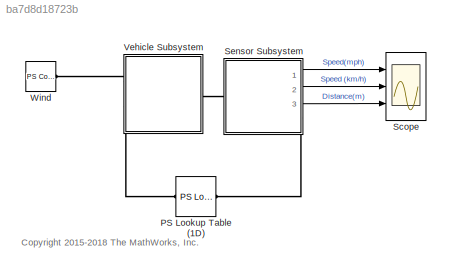
MODEL slx_ba7d8d18723b
KIND model
CONFIG AbsTol = 1e-3
CONFIG EnableMultiTasking = on
CONFIG FixedStep = auto
CONFIG InitFcn = load('terrain_data.mat');\ncar_tire_data;
CONFIG MaxStep = auto
CONFIG MinStep = auto
CONFIG RelTol = 1e-3
CONFIG SampleTimeConstraint = Unconstrained
CONFIG Solver = ode23t
CONFIG SolverName = ode23t
CONFIG StartTime = 0.0
CONFIG StopTime = 75
BLOCK [Reference] PS Lookup Table (1D)  REF=fl_lib/Physical Signals/Lookup Tables/PS Lookup Table (1D)
  Ports = [0, 0, 0, 0, 0, 1, 1]
  SourceBlock = fl_lib/Physical Signals/Lookup Tables/PS Lookup Table (1D)
  SourceProductBaseCode = SS
  SourceProductName = Simscape
  SourceType = PS Lookup Table (1D)
BLOCK [Scope] Scope
  NumInputPorts = 3
  Ports = [3]
  ScopeSpecificationString = Simulink.scopes.TimeScopeBlockCfg('CurrentConfiguration', extmgr.ConfigurationSet(extmgr.Configuration('Core','General UI',true),extmgr.Configuration('Core','Source UI',true),extmgr.Configuration('Sources','WiredSimulink',true,'DataLoggingVariableName','ScopeData1','DataLoggingSaveFormat','Array','DataLoggingDecimation','1','DataLoggingDecimateData',true),extmgr.Configuration('Visuals','Time Domai...<+3020ch>
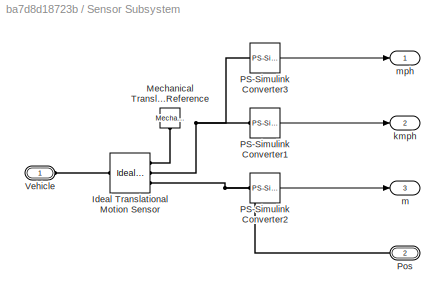
BLOCK [SubSystem] Sensor Subsystem
  Ports = [0, 3, 0, 0, 0, 1, 1]
  RequestExecContextInheritance = off
  Variant = off
BLOCK [Reference] Sensor Subsystem/Ideal Translational Motion Sensor  REF=fl_lib/Mechanical/Mechanical Sensors/Ideal Translational
Motion Sensor
  Ports = [0, 0, 0, 0, 0, 1, 3]
  SourceBlock = fl_lib/Mechanical/Mechanical Sensors/Ideal Translational\nMotion Sensor
  SourceProductBaseCode = SS
  SourceProductName = Simscape
  SourceType = Ideal Translational\nMotion Sensor
BLOCK [Reference] Sensor Subsystem/Mechanical Translational Reference  REF=fl_lib/Mechanical/Translational
Elements/Mechanical
Translational
Reference
  Ports = [0, 0, 0, 0, 0, 1]
  SourceBlock = fl_lib/Mechanical/Translational\nElements/Mechanical\nTranslational\nReference
  SourceProductBaseCode = SS
  SourceProductName = Simscape
  SourceType = Mechanical\nTranslational\nReference
BLOCK [Reference] Sensor Subsystem/PS-Simulink Converter1  REF=nesl_utility/PS-Simulink
Converter
  Ports = [0, 1, 0, 0, 0, 1]
  SourceBlock = nesl_utility/PS-Simulink\nConverter
  SourceProductBaseCode = SS
  SourceProductName = Simscape
  SourceType = PS-Simulink\nConverter
BLOCK [Reference] Sensor Subsystem/PS-Simulink Converter2  REF=nesl_utility/PS-Simulink
Converter
  Ports = [0, 1, 0, 0, 0, 1]
  SourceBlock = nesl_utility/PS-Simulink\nConverter
  SourceProductBaseCode = SS
  SourceProductName = Simscape
  SourceType = PS-Simulink\nConverter
BLOCK [Reference] Sensor Subsystem/PS-Simulink Converter3  REF=nesl_utility/PS-Simulink
Converter
  Ports = [0, 1, 0, 0, 0, 1]
  SourceBlock = nesl_utility/PS-Simulink\nConverter
  SourceProductBaseCode = SS
  SourceProductName = Simscape
  SourceType = PS-Simulink\nConverter
BLOCK [PMIOPort] Sensor Subsystem/Pos
  Port = 2
  Side = Right
BLOCK [PMIOPort] Sensor Subsystem/Vehicle
  Port = 1
  Side = Left
BLOCK [Outport] Sensor Subsystem/kmph
  IconDisplay = Port number
  Port = 2
BLOCK [Outport] Sensor Subsystem/m
  IconDisplay = Port number
  Port = 3
BLOCK [Outport] Sensor Subsystem/mph
  IconDisplay = Port number
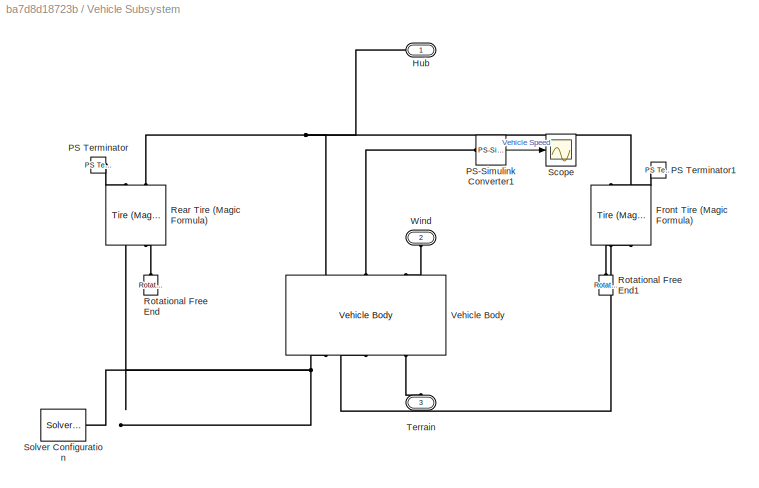
BLOCK [SubSystem] Vehicle Subsystem
  Ports = [0, 0, 0, 0, 0, 2, 1]
  RequestExecContextInheritance = off
  Variant = off
BLOCK [Reference] Vehicle Subsystem/Front Tire (Magic Formula)  REF=sdl_lib/Tires & Vehicles/Tire (Magic Formula)
  Ports = [0, 0, 0, 0, 0, 2, 2]
  SourceBlock = sdl_lib/Tires & Vehicles/Tire (Magic Formula)
  SourceProductBaseCode = LD
  SourceProductName = Simscape Driveline
  SourceType = Tire (Magic Formula)
BLOCK [PMIOPort] Vehicle Subsystem/Hub
  Port = 1
  Side = Right
BLOCK [Reference] Vehicle Subsystem/PS Terminator  REF=fl_lib/Physical Signals/Sinks/PS Terminator
  Ports = [0, 0, 0, 0, 0, 1]
  SourceBlock = fl_lib/Physical Signals/Sinks/PS Terminator
  SourceProductBaseCode = SS
  SourceProductName = Simscape
  SourceType = PS Terminator
BLOCK [Reference] Vehicle Subsystem/PS Terminator1  REF=fl_lib/Physical Signals/Sinks/PS Terminator
  Ports = [0, 0, 0, 0, 0, 1]
  SourceBlock = fl_lib/Physical Signals/Sinks/PS Terminator
  SourceProductBaseCode = SS
  SourceProductName = Simscape
  SourceType = PS Terminator
BLOCK [Reference] Vehicle Subsystem/PS-Simulink Converter1  REF=nesl_utility/PS-Simulink
Converter
  Ports = [0, 1, 0, 0, 0, 1]
  SourceBlock = nesl_utility/PS-Simulink\nConverter
  SourceProductBaseCode = SS
  SourceProductName = Simscape
  SourceType = PS-Simulink\nConverter
BLOCK [Reference] Vehicle Subsystem/Rear Tire (Magic Formula)  REF=sdl_lib/Tires & Vehicles/Tire (Magic Formula)
  Ports = [0, 0, 0, 0, 0, 2, 2]
  SourceBlock = sdl_lib/Tires & Vehicles/Tire (Magic Formula)
  SourceProductBaseCode = LD
  SourceProductName = Simscape Driveline
  SourceType = Tire (Magic Formula)
BLOCK [Reference] Vehicle Subsystem/Rotational Free End  REF=fl_lib/Mechanical/Rotational Elements/Rotational Free End
  Ports = [0, 0, 0, 0, 0, 1]
  SourceBlock = fl_lib/Mechanical/Rotational Elements/Rotational Free End
  SourceProductBaseCode = SS
  SourceProductName = Simscape
  SourceType = Rotational Free End
BLOCK [Reference] Vehicle Subsystem/Rotational Free End1  REF=fl_lib/Mechanical/Rotational Elements/Rotational Free End
  Ports = [0, 0, 0, 0, 0, 1]
  SourceBlock = fl_lib/Mechanical/Rotational Elements/Rotational Free End
  SourceProductBaseCode = SS
  SourceProductName = Simscape
  SourceType = Rotational Free End
BLOCK [Scope] Vehicle Subsystem/Scope
  NumInputPorts = 1
  Ports = [1]
  ScopeSpecificationString = C++SS(StrPVP('Location','[812, 325, 1206, 663]'),StrPVP('Open','off'),MxPVP('AxesTitles',53,'struct(''axes1'',''%<SignalLabel>'')'),MxPVP('ScopeGraphics',56,'struct(''FigureColor'',''[0.5 0.5 0.5]'',''AxesColor'',''[0 0 0]'',''AxesTickColor'',''[1 1 1]'',''LineColors'',''[1 1 0;1 0 1;0 1 1;1 0 0;0 1 0;0 0 1]'',''LineStyles'',''-|-|-|-|-|-'',''LineWidths'',''[0.5 0.5 0.5 0.5 0.5 0.5]'',''MarkerStyl...<+165ch>
BLOCK [Reference] Vehicle Subsystem/Solver Configuration  REF=nesl_utility/Solver
Configuration
  Ports = [0, 0, 0, 0, 0, 0, 1]
  SourceBlock = nesl_utility/Solver\nConfiguration
  SourceProductBaseCode = SS
  SourceProductName = Simscape
  SourceType = Solver\nConfiguration
BLOCK [PMIOPort] Vehicle Subsystem/Terrain
  Port = 3
  Side = Left
BLOCK [Reference] Vehicle Subsystem/Vehicle Body  REF=sdl_lib/Tires & Vehicles/Vehicle Body
  Ports = [0, 0, 0, 0, 0, 3, 3]
  SourceBlock = sdl_lib/Tires & Vehicles/Vehicle Body
  SourceProductBaseCode = LD
  SourceProductName = Simscape Driveline
  SourceType = Vehicle Body
BLOCK [PMIOPort] Vehicle Subsystem/Wind
  Port = 2
  Side = Left
BLOCK [Reference] Wind  REF=fl_lib/Physical Signals/Sources/PS Constant
  Ports = [0, 0, 0, 0, 0, 0, 1]
  SourceBlock = fl_lib/Physical Signals/Sources/PS Constant
  SourceProductBaseCode = SS
  SourceProductName = Simscape
  SourceType = PS Constant
ANNOTATION (root): <copyright redacted>
LINE Sensor Subsystem/PS-Simulink Converter1:1 -> Sensor Subsystem/kmph:1
LINE Sensor Subsystem/PS-Simulink Converter2:1 -> Sensor Subsystem/m:1
LINE Sensor Subsystem/PS-Simulink Converter3:1 -> Sensor Subsystem/mph:1
LINE Sensor Subsystem:1 -> Scope:1
LINE Sensor Subsystem:2 -> Scope:2
LINE Sensor Subsystem:3 -> Scope:3
LINE Vehicle Subsystem/PS-Simulink Converter1:1 -> Vehicle Subsystem/Scope:1
PLINE PS Lookup Table (1D):LConn1 -- Sensor Subsystem:RConn1
PLINE PS Lookup Table (1D):RConn1 -- Vehicle Subsystem:LConn2
PLINE Sensor Subsystem/Ideal Translational Motion Sensor:LConn1 -- Sensor Subsystem/Vehicle:RConn1
PLINE Sensor Subsystem/Ideal Translational Motion Sensor:RConn1 -- Sensor Subsystem/Mechanical Translational Reference:LConn1
PNET net1: Sensor Subsystem/Ideal Translational Motion Sensor:RConn2 -- Sensor Subsystem/PS-Simulink Converter1:LConn1 -- Sensor Subsystem/PS-Simulink Converter3:LConn1
PNET net2: Sensor Subsystem/Ideal Translational Motion Sensor:RConn3 -- Sensor Subsystem/PS-Simulink Converter2:LConn1 -- Sensor Subsystem/Pos:RConn1
PLINE Sensor Subsystem:LConn1 -- Vehicle Subsystem:RConn1
PLINE Vehicle Subsystem/Front Tire (Magic Formula):LConn1 -- Vehicle Subsystem/Vehicle Body:RConn2
PLINE Vehicle Subsystem/Front Tire (Magic Formula):LConn2 -- Vehicle Subsystem/Rotational Free End1:LConn1
PLINE Vehicle Subsystem/Front Tire (Magic Formula):RConn1 -- Vehicle Subsystem/PS Terminator1:LConn1
PNET net3: Vehicle Subsystem/Front Tire (Magic Formula):RConn2 -- Vehicle Subsystem/Hub:RConn1 -- Vehicle Subsystem/Rear Tire (Magic Formula):RConn2 -- Vehicle Subsystem/Vehicle Body:LConn1
PLINE Vehicle Subsystem/PS Terminator:LConn1 -- Vehicle Subsystem/Rear Tire (Magic Formula):RConn1
PLINE Vehicle Subsystem/PS-Simulink Converter1:LConn1 -- Vehicle Subsystem/Vehicle Body:LConn2
PNET net4: Vehicle Subsystem/Rear Tire (Magic Formula):LConn1 -- Vehicle Subsystem/Solver Configuration:RConn1 -- Vehicle Subsystem/Vehicle Body:RConn1
PLINE Vehicle Subsystem/Rear Tire (Magic Formula):LConn2 -- Vehicle Subsystem/Rotational Free End:LConn1
PLINE Vehicle Subsystem/Terrain:RConn1 -- Vehicle Subsystem/Vehicle Body:RConn3
PLINE Vehicle Subsystem/Vehicle Body:LConn3 -- Vehicle Subsystem/Wind:RConn1
PLINE Vehicle Subsystem:LConn1 -- Wind:RConn1
note: PNET lines group multi-terminal physical nets as a canonical sorted terminal list (undirected conserving connections); 2-terminal nets keep the pairwise PLINE form
